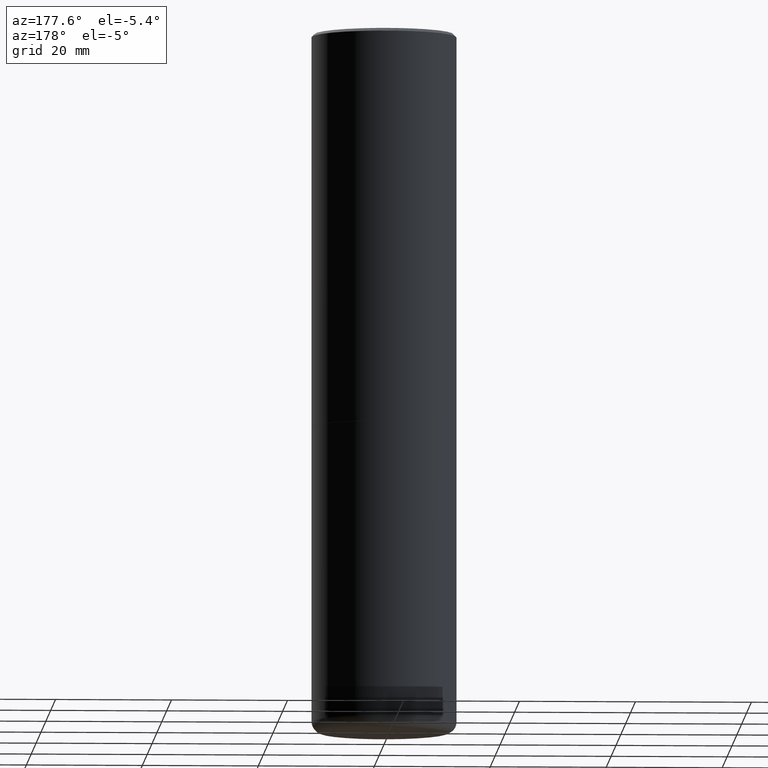
[diagram: clean part render]
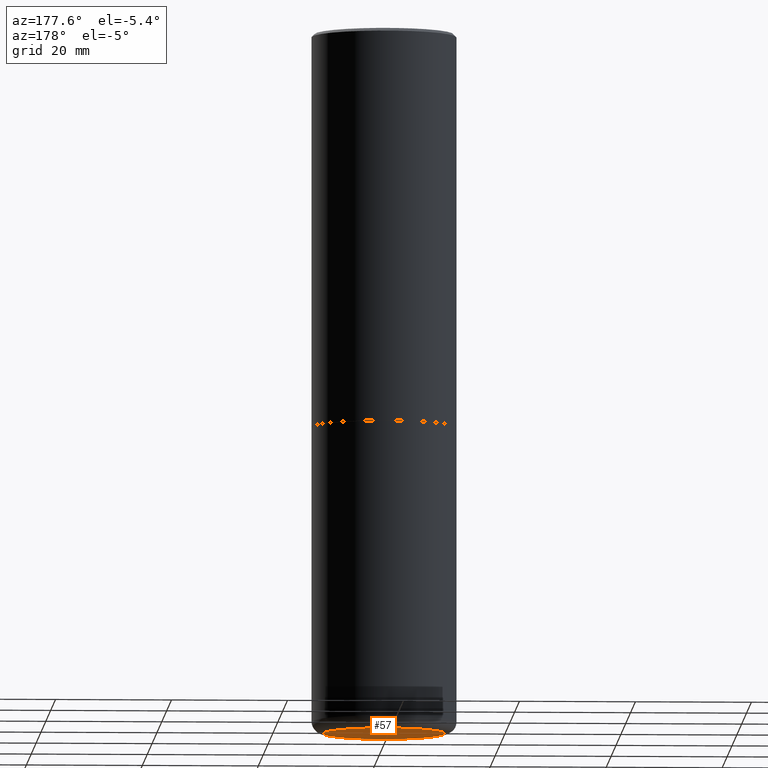
[diagram: same view with one face highlighted and labeled with its STEP entity id]
A machine part, auxiliary view. The second image highlights one B-rep face of the part: STEP entity #57.
In plain terms, the highlighted planar face has unit normal (0, -0, -1).
Its self-contained STEP definition (entity closure, byte-faithful):
#7 = DIRECTION ( 'NONE',  ( -2.445468806185136597E-29, 3.491481338843145583E-15, 1.000000000000000000 ) ) ;
#8 = AXIS2_PLACEMENT_3D ( 'NONE', #154, #7, #287 ) ;
#34 = DIRECTION ( 'NONE',  ( 1.000000000000000000, -6.982962677686271444E-15, 0.000000000000000000 ) ) ;
#37 = AXIS2_PLACEMENT_3D ( 'NONE', #42, #238, #69 ) ;
#42 = CARTESIAN_POINT ( 'NONE',  ( 1.604571505845230914E-28, -1.033740983005313699E-14, -4.763799999999998924 ) ) ;
#57 = ADVANCED_FACE ( 'NONE', ( #319 ), #323, .T. ) ;
#69 = DIRECTION ( 'NONE',  ( -1.000000000000000000, 6.982962677686265922E-15, -4.876176775795935793E-29 ) ) ;
#84 = ORIENTED_EDGE ( 'NONE', *, *, #186, .F. ) ;
#104 = VERTEX_POINT ( 'NONE', #137 ) ;
#116 = CARTESIAN_POINT ( 'NONE',  ( -0.4134499999999999287, -1.327799150377576435E-14, -4.763799999999998924 ) ) ;
#137 = CARTESIAN_POINT ( 'NONE',  ( 0.4134499999999999287, -1.951982472107036283E-14, -4.763799999999998924 ) ) ;
#154 = CARTESIAN_POINT ( 'NONE',  ( 1.164972429890475074E-28, -1.663271880198097531E-14, -4.763799999999998924 ) ) ;
#172 = VERTEX_POINT ( 'NONE', #116 ) ;
#181 = AXIS2_PLACEMENT_3D ( 'NONE', #265, #328, #34 ) ;
#186 = EDGE_CURVE ( 'NONE', #104, #172, #216, .T. ) ;
#216 = CIRCLE ( 'NONE', #181, 0.4134499999999999287 ) ;
#235 = EDGE_CURVE ( 'NONE', #172, #104, #317, .T. ) ;
#238 = DIRECTION ( 'NONE',  ( 2.438088387897960049E-29, -3.491481338843145188E-15, -1.000000000000000000 ) ) ;
#265 = CARTESIAN_POINT ( 'NONE',  ( 1.164972429890475074E-28, -1.663271880198097531E-14, -4.763799999999998924 ) ) ;
#287 = DIRECTION ( 'NONE',  ( 1.000000000000000000, -6.982962677686271444E-15, 0.000000000000000000 ) ) ;
#317 = CIRCLE ( 'NONE', #8, 0.4134499999999999287 ) ;
#319 = FACE_OUTER_BOUND ( 'NONE', #339, .T. ) ;
#323 = PLANE ( 'NONE',  #37 ) ;
#328 = DIRECTION ( 'NONE',  ( -2.445468806185136597E-29, 3.491481338843145583E-15, 1.000000000000000000 ) ) ;
#339 = EDGE_LOOP ( 'NONE', ( #84, #382 ) ) ;
#382 = ORIENTED_EDGE ( 'NONE', *, *, #235, .F. ) ;